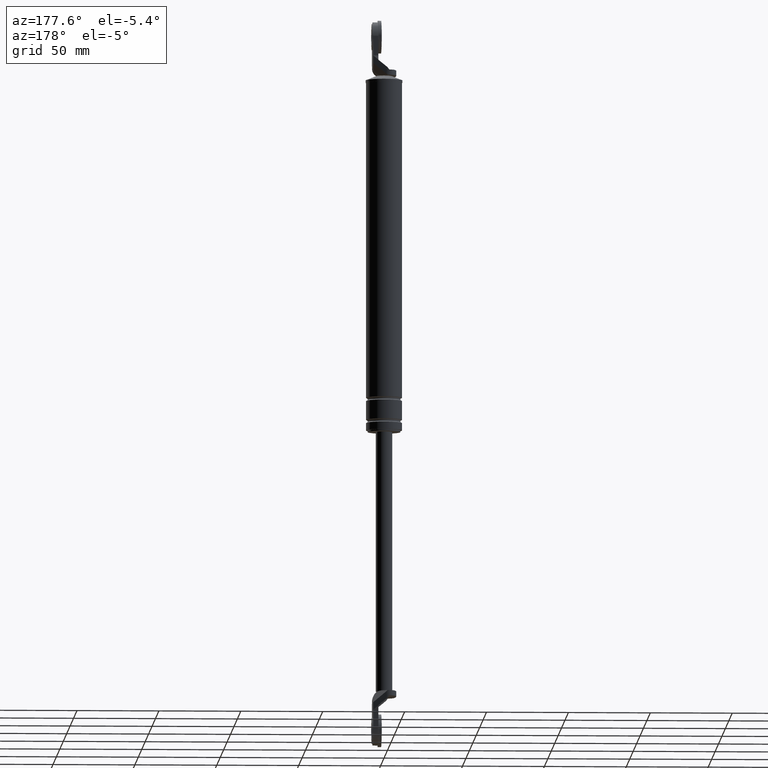
[diagram: clean part render]
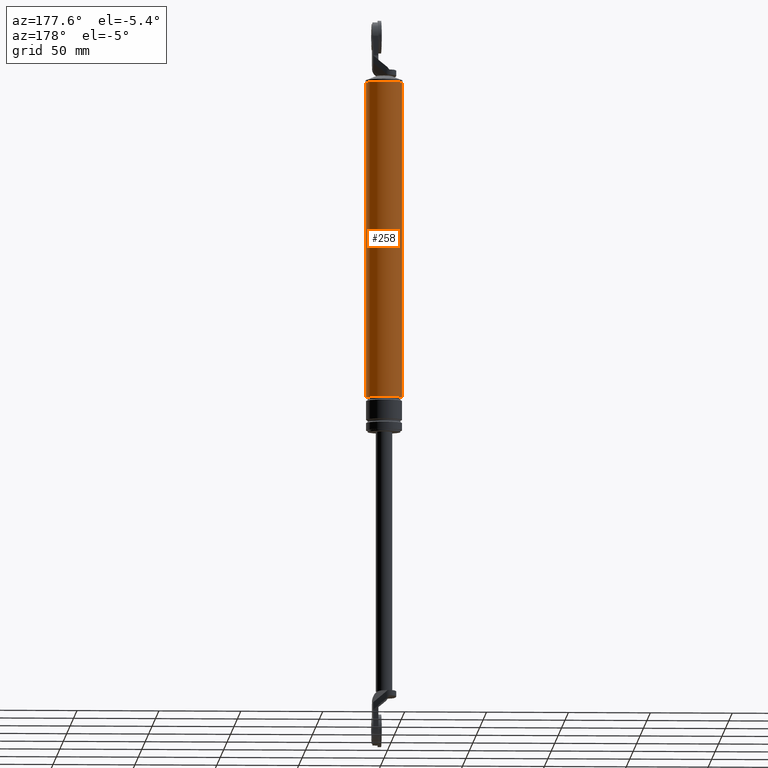
[diagram: same view with one face highlighted and labeled with its STEP entity id]
A machine part, auxiliary view. The second image highlights one B-rep face of the part: STEP entity #258.
In plain terms, the highlighted cylindrical surface (edge-blend (fillet) strip) has radius 11 mm, axis along (0, 0, 1).
Its self-contained STEP definition (entity closure, byte-faithful):
#258=ADVANCED_FACE('',(#837),#836,.T.);
#836=CYLINDRICAL_SURFACE('',#1586,1.10000000000E+001);
#837=FACE_OUTER_BOUND('',#1587,.T.);
#1583=CARTESIAN_POINT('',(0.00000000000E+000,3.58204186421E-014,0.00000000000E+000));
#1584=DIRECTION('',(-0.00000000000E+000,-0.00000000000E+000,1.00000000000E+000));
#1585=DIRECTION('',(1.00000000000E+000,-0.00000000000E+000,-0.00000000000E+000));
#1586=AXIS2_PLACEMENT_3D('',#1583,#1584,#1585);
#1587=EDGE_LOOP('',(#2030,#2031,#2032,#2033));
#2030=ORIENTED_EDGE('',*,*,#2272,.T.);
#2031=ORIENTED_EDGE('',*,*,#2307,.F.);
#2032=ORIENTED_EDGE('',*,*,#2301,.F.);
#2033=ORIENTED_EDGE('',*,*,#2308,.T.);
#2272=EDGE_CURVE('',#2995,#2994,#3002,.T.);
#2301=EDGE_CURVE('',#3186,#3187,#3188,.T.);
#2307=EDGE_CURVE('',#3187,#2994,#3224,.T.);
#2308=EDGE_CURVE('',#3186,#2995,#3230,.T.);
#2994=VERTEX_POINT('',#4097);
#2995=VERTEX_POINT('',#4098);
#3002=CIRCLE('',#4106,1.10000000000E+001);
#3186=VERTEX_POINT('',#4207);
#3187=VERTEX_POINT('',#4208);
#3188=CIRCLE('',#4212,1.10000000000E+001);
#3224=(BOUNDED_CURVE() B_SPLINE_CURVE(1,(#4231,#4232),.UNSPECIFIED.,.F.,.F.) B_SPLINE_CURVE_WITH_KNOTS((2,2),(4.69483567402E-002,9.53051643288E-001),.UNSPECIFIED.) CURVE() GEOMETRIC_REPRESENTATION_ITEM() RATIONAL_B_SPLINE_CURVE((1.00000000000E+000,1.00000000000E+000)) REPRESENTATION_ITEM('') );
#3230=(BOUNDED_CURVE() B_SPLINE_CURVE(1,(#4233,#4234),.UNSPECIFIED.,.F.,.F.) B_SPLINE_CURVE_WITH_KNOTS((2,2),(4.69483568075E-002,9.53051643192E-001),.UNSPECIFIED.) CURVE() GEOMETRIC_REPRESENTATION_ITEM() RATIONAL_B_SPLINE_CURVE((7.50000000000E-001,7.50000000000E-001)) REPRESENTATION_ITEM('') );
#4097=CARTESIAN_POINT('',(1.10000000000E+001,3.61192557345E-014,8.49999850000E+001));
#4098=CARTESIAN_POINT('',(-1.10000000000E+001,3.58204186421E-014,8.49999850000E+001));
#4103=CARTESIAN_POINT('',(0.00000000000E+000,3.58204186421E-014,8.49999850000E+001));
#4104=DIRECTION('',(-0.00000000000E+000,0.00000000000E+000,-1.00000000000E+000));
#4105=DIRECTION('',(-1.00000000000E+000,-1.22460635382E-016,0.00000000000E+000));
#4106=AXIS2_PLACEMENT_3D('',#4103,#4104,#4105);
#4207=CARTESIAN_POINT('',(-1.10000000000E+001,3.58204186421E-014,-1.08000015000E+002));
#4208=CARTESIAN_POINT('',(1.10000000000E+001,3.61192557345E-014,-1.08000015000E+002));
#4209=CARTESIAN_POINT('',(0.00000000000E+000,3.58204186421E-014,-1.08000015000E+002));
#4210=DIRECTION('',(-0.00000000000E+000,0.00000000000E+000,-1.00000000000E+000));
#4211=DIRECTION('',(-1.00000000000E+000,-1.22460635382E-016,0.00000000000E+000));
#4212=AXIS2_PLACEMENT_3D('',#4209,#4210,#4211);
#4231=CARTESIAN_POINT('',(1.10000000000E+001,3.58204186421E-014,-1.08000015014E+002));
#4232=CARTESIAN_POINT('',(1.10000000000E+001,3.58204186421E-014,8.49999850203E+001));
#4233=CARTESIAN_POINT('',(-1.10000000000E+001,3.55271367880E-014,-1.08000015000E+002));
#4234=CARTESIAN_POINT('',(-1.10000000000E+001,3.55271367880E-014,8.49999850000E+001));